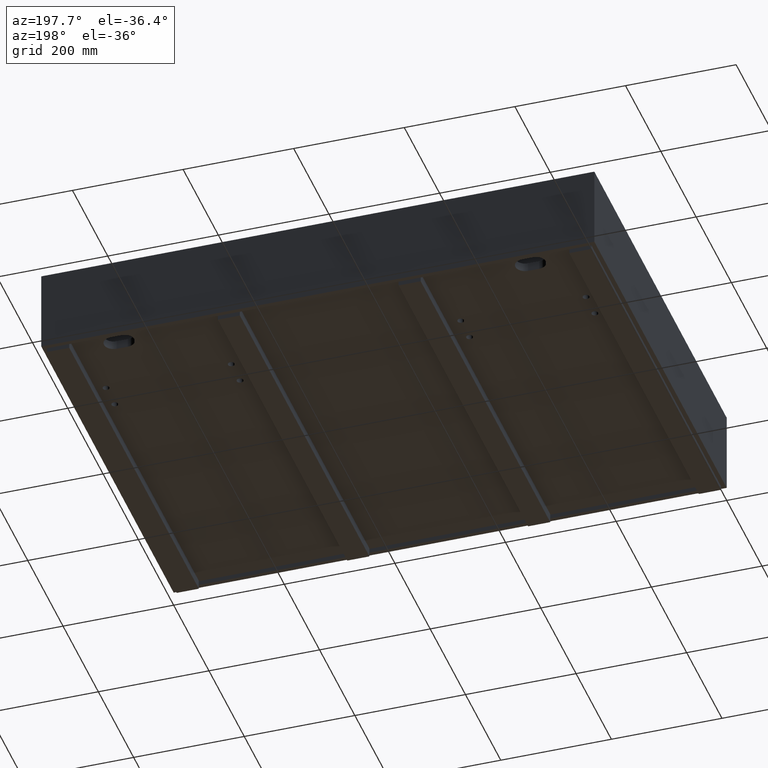
[diagram: clean part render]
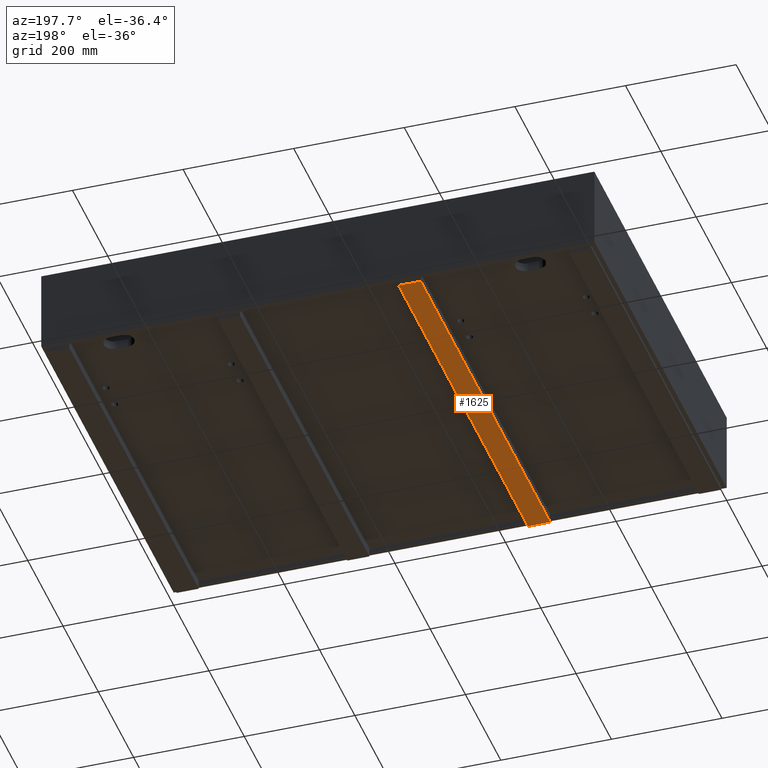
[diagram: same view with one face highlighted and labeled with its STEP entity id]
A machine part, auxiliary view. The second image highlights one B-rep face of the part: STEP entity #1625.
In plain terms, the highlighted planar face has unit normal (-0, 0, -1).
Its self-contained STEP definition (entity closure, byte-faithful):
#149 = DIRECTION ( 'NONE',  ( -1.512565634716239722E-16, -1.000000000000000000, 0.0000000000000000000 ) ) ;
#265 = EDGE_CURVE ( 'NONE', #9270, #10514, #13328, .T. ) ;
#295 = CARTESIAN_POINT ( 'NONE',  ( 356.5033333300000322, 8.000000000000007105, -158.0000000000003126 ) ) ;
#1063 = CARTESIAN_POINT ( 'NONE',  ( 316.5033333300001459, 741.9999000000000251, -158.0000000000003126 ) ) ;
#1527 = VECTOR ( 'NONE', #10306, 1000.000000000000000 ) ;
#1625 = ADVANCED_FACE ( 'NONE', ( #3128 ), #8598, .T. ) ;
#1677 = CARTESIAN_POINT ( 'NONE',  ( 316.5033333300001459, 741.9999000000000251, -158.0000000000003126 ) ) ;
#1776 = DIRECTION ( 'NONE',  ( -0.0000000000000000000, 0.0000000000000000000, -1.000000000000000000 ) ) ;
#2144 = CARTESIAN_POINT ( 'NONE',  ( 356.5033333300000322, 8.000000000000007105, -158.0000000000003126 ) ) ;
#2178 = ORIENTED_EDGE ( 'NONE', *, *, #12097, .T. ) ;
#3128 = FACE_OUTER_BOUND ( 'NONE', #4923, .T. ) ;
#3826 = EDGE_CURVE ( 'NONE', #10514, #10008, #17093, .T. ) ;
#4849 = CARTESIAN_POINT ( 'NONE',  ( 356.5033333300001459, 741.9999000000000251, -158.0000000000003126 ) ) ;
#4923 = EDGE_LOOP ( 'NONE', ( #2178, #15398, #15471, #7610 ) ) ;
#5768 = DIRECTION ( 'NONE',  ( -1.000000000000000000, 1.301042606982606060E-16, 0.0000000000000000000 ) ) ;
#6537 = DIRECTION ( 'NONE',  ( 7.562828173581198609E-17, 1.000000000000000000, 0.0000000000000000000 ) ) ;
#6964 = LINE ( 'NONE', #12410, #10161 ) ;
#7158 = VECTOR ( 'NONE', #6537, 1000.000000000000000 ) ;
#7265 = DIRECTION ( 'NONE',  ( -1.000000000000000000, -5.956193060860204768E-35, 0.0000000000000000000 ) ) ;
#7610 = ORIENTED_EDGE ( 'NONE', *, *, #3826, .T. ) ;
#8598 = PLANE ( 'NONE',  #16900 ) ;
#9270 = VERTEX_POINT ( 'NONE', #9897 ) ;
#9897 = CARTESIAN_POINT ( 'NONE',  ( 316.5033333300000891, 8.000000000000007105, -158.0000000000003126 ) ) ;
#10008 = VERTEX_POINT ( 'NONE', #14968 ) ;
#10161 = VECTOR ( 'NONE', #149, 1000.000000000000000 ) ;
#10306 = DIRECTION ( 'NONE',  ( 1.000000000000000000, 5.956193060860204768E-35, 0.0000000000000000000 ) ) ;
#10514 = VERTEX_POINT ( 'NONE', #1677 ) ;
#11023 = VERTEX_POINT ( 'NONE', #2144 ) ;
#12097 = EDGE_CURVE ( 'NONE', #10008, #11023, #6964, .T. ) ;
#12410 = CARTESIAN_POINT ( 'NONE',  ( 356.5033333300001459, 741.9999000000000251, -158.0000000000003126 ) ) ;
#12559 = LINE ( 'NONE', #295, #17358 ) ;
#13328 = LINE ( 'NONE', #1063, #7158 ) ;
#14040 = CARTESIAN_POINT ( 'NONE',  ( 0.0000000000000000000, 0.0000000000000000000, -158.0000000000003126 ) ) ;
#14968 = CARTESIAN_POINT ( 'NONE',  ( 356.5033333300001459, 741.9999000000000251, -158.0000000000003126 ) ) ;
#15398 = ORIENTED_EDGE ( 'NONE', *, *, #15409, .T. ) ;
#15409 = EDGE_CURVE ( 'NONE', #11023, #9270, #12559, .T. ) ;
#15471 = ORIENTED_EDGE ( 'NONE', *, *, #265, .T. ) ;
#16900 = AXIS2_PLACEMENT_3D ( 'NONE', #14040, #1776, #7265 ) ;
#17093 = LINE ( 'NONE', #4849, #1527 ) ;
#17358 = VECTOR ( 'NONE', #5768, 1000.000000000000000 ) ;